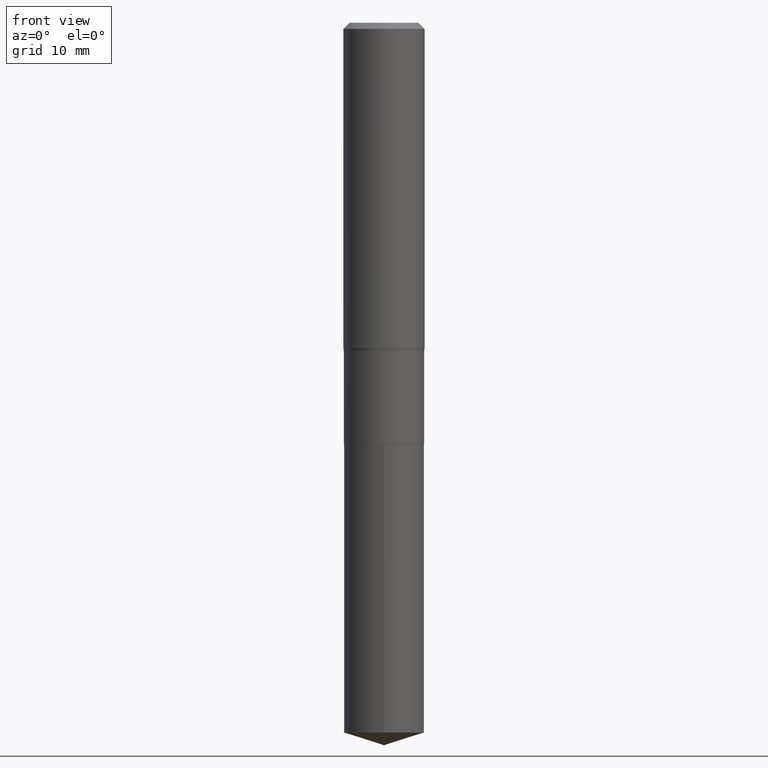
[diagram: clean part render]
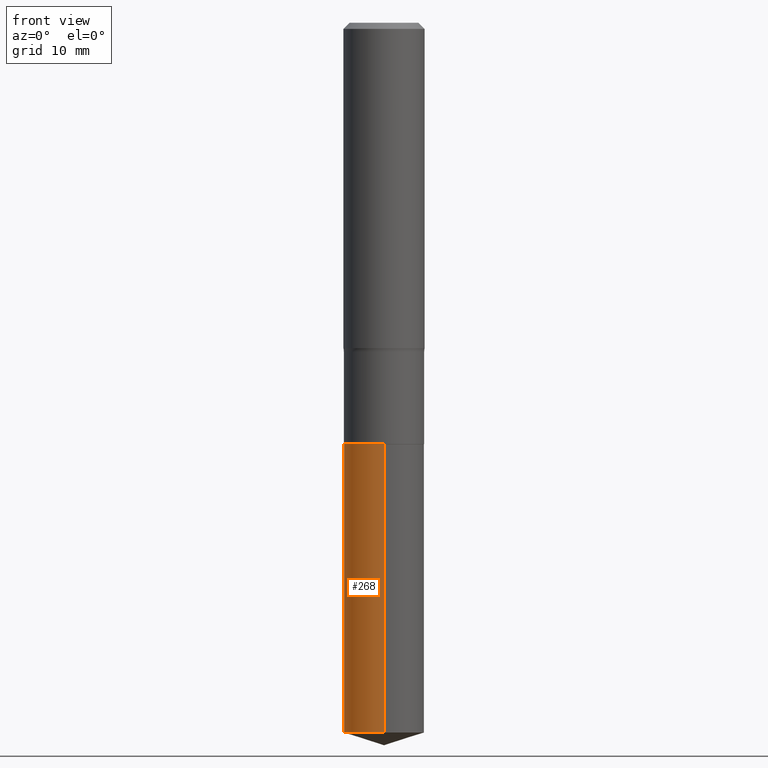
[diagram: same view with one face highlighted and labeled with its STEP entity id]
A machine part, front view. The second image highlights one B-rep face of the part: STEP entity #268.
In plain terms, the highlighted cylindrical surface (partial cylindrical patch) has radius 4.9505 mm, axis along (-0, 0, 1).
Its self-contained STEP definition (entity closure, byte-faithful):
#12 = CARTESIAN_POINT ( 'NONE',  ( 8.418291148036325136E-29, -1.201939955042089014E-14, -3.442448266047486882 ) ) ;
#46 = FACE_OUTER_BOUND ( 'NONE', #410, .T. ) ;
#47 = LINE ( 'NONE', #389, #292 ) ;
#59 = VERTEX_POINT ( 'NONE', #460 ) ;
#68 = DIRECTION ( 'NONE',  ( -2.445391113569169030E-29, 3.491592599091200218E-15, 1.000000000000000000 ) ) ;
#88 = DIRECTION ( 'NONE',  ( -2.445391113569169030E-29, 3.491592599091200218E-15, 1.000000000000000000 ) ) ;
#113 = CARTESIAN_POINT ( 'NONE',  ( -1.360979425881003196E-15, -0.1949000000000071231, -2.043299999999999006 ) ) ;
#117 = LINE ( 'NONE', #113, #258 ) ;
#118 = CYLINDRICAL_SURFACE ( 'NONE', #318, 0.1948999999999999899 ) ;
#123 = CARTESIAN_POINT ( 'NONE',  ( -1.360979425881003196E-15, -0.1949000000000071231, -2.043299999999999006 ) ) ;
#131 = AXIS2_PLACEMENT_3D ( 'NONE', #12, #237, #198 ) ;
#147 = ORIENTED_EDGE ( 'NONE', *, *, #300, .F. ) ;
#179 = CIRCLE ( 'NONE', #233, 0.1948999999999999899 ) ;
#188 = EDGE_CURVE ( 'NONE', #59, #473, #47, .T. ) ;
#191 = CARTESIAN_POINT ( 'NONE',  ( 4.996826411678088614E-29, -7.134143819658198107E-15, -2.043299999999999894 ) ) ;
#198 = DIRECTION ( 'NONE',  ( -6.982962677686266711E-15, -1.000000000000000000, 2.803332984776052637E-15 ) ) ;
#216 = VERTEX_POINT ( 'NONE', #123 ) ;
#221 = DIRECTION ( 'NONE',  ( -6.982962677686266711E-15, -1.000000000000000000, 2.803332984776052637E-15 ) ) ;
#233 = AXIS2_PLACEMENT_3D ( 'NONE', #337, #68, #221 ) ;
#237 = DIRECTION ( 'NONE',  ( -2.445391113569169030E-29, 3.491592599091200218E-15, 1.000000000000000000 ) ) ;
#242 = ORIENTED_EDGE ( 'NONE', *, *, #188, .F. ) ;
#244 = ORIENTED_EDGE ( 'NONE', *, *, #401, .T. ) ;
#246 = CARTESIAN_POINT ( 'NONE',  ( 1.384847791996519402E-15, 0.1948999999999928567, -2.043300000000000338 ) ) ;
#258 = VECTOR ( 'NONE', #430, 39.37007874015748143 ) ;
#268 = ADVANCED_FACE ( 'NONE', ( #46 ), #118, .T. ) ;
#292 = VECTOR ( 'NONE', #88, 39.37007874015748143 ) ;
#300 = EDGE_CURVE ( 'NONE', #473, #216, #179, .T. ) ;
#318 = AXIS2_PLACEMENT_3D ( 'NONE', #191, #346, #462 ) ;
#337 = CARTESIAN_POINT ( 'NONE',  ( 4.996826411678088614E-29, -7.134143819658198107E-15, -2.043299999999999894 ) ) ;
#340 = CARTESIAN_POINT ( 'NONE',  ( -1.360979425880969472E-15, -0.1949000000000120636, -3.442448266047486438 ) ) ;
#346 = DIRECTION ( 'NONE',  ( -2.445391113569169030E-29, 3.491592599091200218E-15, 1.000000000000000000 ) ) ;
#377 = EDGE_CURVE ( 'NONE', #440, #216, #117, .T. ) ;
#389 = CARTESIAN_POINT ( 'NONE',  ( 1.384847791996484889E-15, 0.1948999999999928567, -2.043300000000000338 ) ) ;
#401 = EDGE_CURVE ( 'NONE', #59, #440, #459, .T. ) ;
#410 = EDGE_LOOP ( 'NONE', ( #242, #244, #491, #147 ) ) ;
#430 = DIRECTION ( 'NONE',  ( -2.445391113569169030E-29, 3.491592599091200218E-15, 1.000000000000000000 ) ) ;
#440 = VERTEX_POINT ( 'NONE', #340 ) ;
#459 = CIRCLE ( 'NONE', #131, 0.1948999999999999899 ) ;
#460 = CARTESIAN_POINT ( 'NONE',  ( 1.384847791996519599E-15, 0.1948999999999880273, -3.442448266047487326 ) ) ;
#462 = DIRECTION ( 'NONE',  ( -6.982962677686266711E-15, -1.000000000000000000, 2.803332984776052637E-15 ) ) ;
#473 = VERTEX_POINT ( 'NONE', #246 ) ;
#491 = ORIENTED_EDGE ( 'NONE', *, *, #377, .T. ) ;